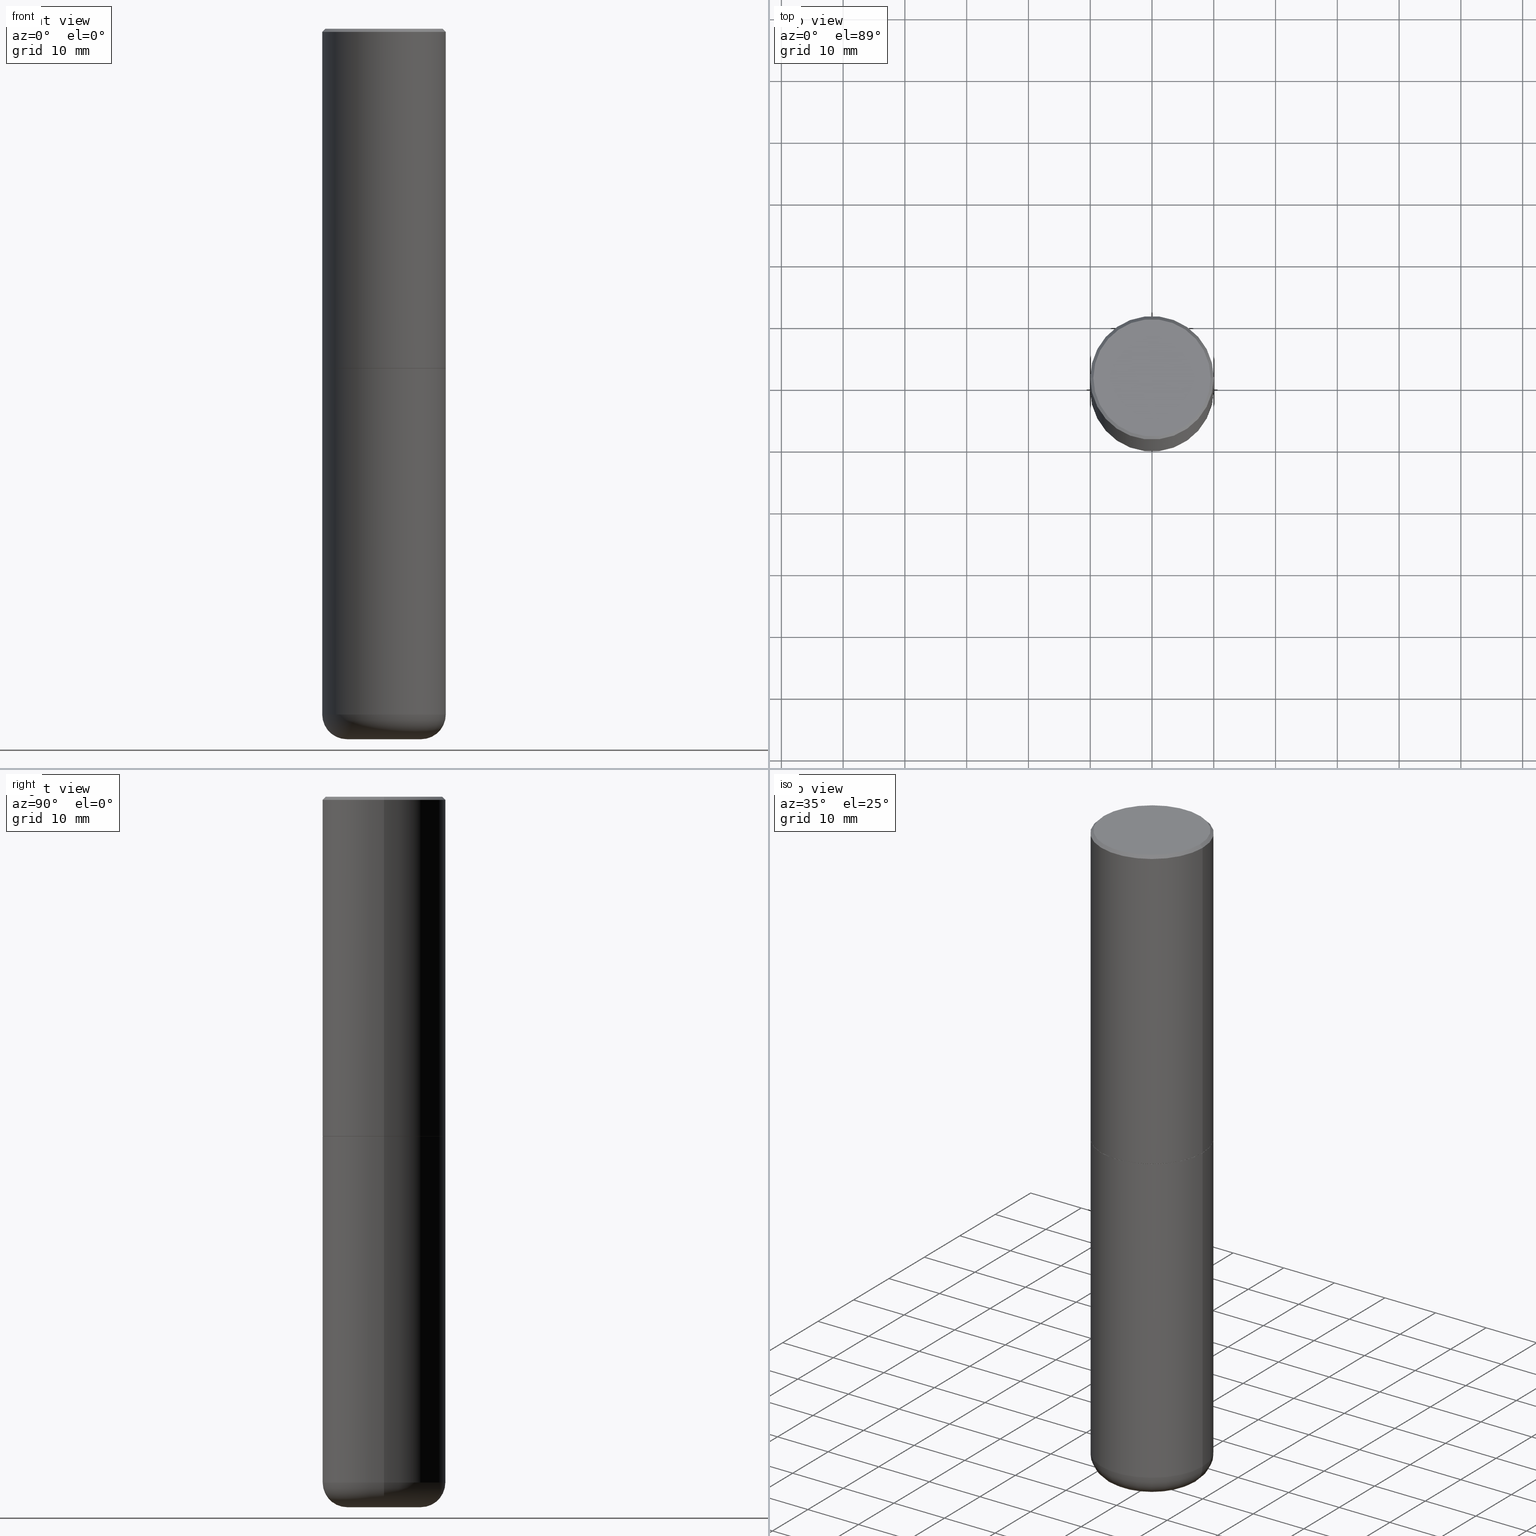
[diagram: canonical four-view strip — front | top / right | iso, engineering-drawing reading convention]
A machine part, canonical four-view strip (front | top / right | iso — engineering-drawing reading convention). The complete STEP part file that produces these views, byte-faithful:
ISO-10303-21;
HEADER;
FILE_DESCRIPTION (( 'STEP AP203' ),
    '1' );
FILE_NAME ('74662.STEP',
    '2024-03-06T15:55:29',
    ( '' ),
    ( '' ),
    'SwSTEP 2.0',
    'SolidWorks 2023',
    '' );
FILE_SCHEMA (( 'CONFIG_CONTROL_DESIGN' ));
ENDSEC;

DATA;
#1 = DIRECTION ( 'NONE',  ( -1.000000000000000000, 6.982962677686265922E-15, 0.000000000000000000 ) ) ;
#2 = VECTOR ( 'NONE', #80, 39.37007874015748854 ) ;
#3 = PRODUCT_RELATED_PRODUCT_CATEGORY ( 'detail', '', ( #197 ) ) ;
#4 = CARTESIAN_POINT ( 'NONE',  ( 5.295418152913294345E-29, -7.560453691130947423E-15, -2.165399999999999991 ) ) ;
#5 = DIRECTION ( 'NONE',  ( 1.000000000000000000, -6.982962677686265133E-15, 0.000000000000000000 ) ) ;
#6 = CIRCLE ( 'NONE', #51, 0.3737000000000000322 ) ;
#7 = EDGE_LOOP ( 'NONE', ( #29, #301, #292, #326 ) ) ;
#8 = AXIS2_PLACEMENT_3D ( 'NONE', #239, #235, #83 ) ;
#9 = ORIENTED_EDGE ( 'NONE', *, *, #165, .T. ) ;
#10 = DIRECTION ( 'NONE',  ( 1.000000000000000000, 0.000000000000000000, 0.000000000000000000 ) ) ;
#11 = ORIENTED_EDGE ( 'NONE', *, *, #106, .T. ) ;
#12 = EDGE_CURVE ( 'NONE', #370, #275, #291, .T. ) ;
#13 = EDGE_CURVE ( 'NONE', #336, #405, #40, .T. ) ;
#14 = EDGE_CURVE ( 'NONE', #258, #402, #199, .T. ) ;
#15 = ADVANCED_BREP_SHAPE_REPRESENTATION ( '74662', ( #68, #348, #325 ), #33 ) ;
#16 = SECURITY_CLASSIFICATION_LEVEL ( 'unclassified' ) ;
#17 = APPROVAL_PERSON_ORGANIZATION ( #177, #236, #82 ) ;
#18 = CARTESIAN_POINT ( 'NONE',  ( 0.000000000000000000, 0.000000000000000000, 0.000000000000000000 ) ) ;
#19 = ORIENTED_EDGE ( 'NONE', *, *, #148, .T. ) ;
#20 = APPROVAL_STATUS ( 'not_yet_approved' ) ;
#21 = ORIENTED_EDGE ( 'NONE', *, *, #144, .F. ) ;
#22 = DIRECTION ( 'NONE',  ( -2.445468806185136597E-29, 3.491481338843145583E-15, 1.000000000000000000 ) ) ;
#23 = VECTOR ( 'NONE', #320, 39.37007874015748143 ) ;
#24 = DIRECTION ( 'NONE',  ( -2.445468806185136597E-29, 3.491481338843145583E-15, 1.000000000000000000 ) ) ;
#25 = PLANE ( 'NONE',  #340 ) ;
#26 = LINE ( 'NONE', #150, #304 ) ;
#27 = CARTESIAN_POINT ( 'NONE',  ( 1.068694322990966450E-28, -1.525812259887842897E-14, -4.370099999999998985 ) ) ;
#28 = LINE ( 'NONE', #413, #381 ) ;
#29 = ORIENTED_EDGE ( 'NONE', *, *, #176, .F. ) ;
#30 = CARTESIAN_POINT ( 'NONE',  ( 5.295418152913293224E-29, -7.560453691130945845E-15, -2.165399999999999547 ) ) ;
#31 = DIRECTION ( 'NONE',  ( 2.445468806185136597E-29, -3.491481338843145583E-15, -1.000000000000000000 ) ) ;
#32 = EDGE_CURVE ( 'NONE', #238, #114, #211, .T. ) ;
#33 =( GEOMETRIC_REPRESENTATION_CONTEXT ( 3 ) GLOBAL_UNCERTAINTY_ASSIGNED_CONTEXT ( ( #99 ) ) GLOBAL_UNIT_ASSIGNED_CONTEXT ( ( #257, #394, #293 ) ) REPRESENTATION_CONTEXT ( 'NONE', 'WORKASPACE' ) );
#34 = CARTESIAN_POINT ( 'NONE',  ( 4.890937612370294178E-31, -6.982962677686321191E-17, -0.02000000000000008715 ) ) ;
#35 = DIRECTION ( 'NONE',  ( 1.000000000000000000, -6.982962677686265922E-15, 0.000000000000000000 ) ) ;
#36 = EDGE_CURVE ( 'NONE', #159, #100, #89, .T. ) ;
#37 = PLANE ( 'NONE',  #109 ) ;
#38 = ORIENTED_EDGE ( 'NONE', *, *, #274, .T. ) ;
#39 = AXIS2_PLACEMENT_3D ( 'NONE', #154, #232, #401 ) ;
#40 = CIRCLE ( 'NONE', #220, 0.3937000000000000499 ) ;
#41 = ADVANCED_FACE ( 'NONE', ( #196 ), #180, .T. ) ;
#42 = ORIENTED_EDGE ( 'NONE', *, *, #14, .T. ) ;
#43 = PERSON_AND_ORGANIZATION_ROLE ( 'design_supplier' ) ;
#44 = ORIENTED_EDGE ( 'NONE', *, *, #360, .F. ) ;
#45 = CALENDAR_DATE ( 2024, 6, 3 ) ;
#46 = CARTESIAN_POINT ( 'NONE',  ( -0.3937000000000001054, -1.246071584819091497E-14, -4.370099999999998985 ) ) ;
#47 = LOCAL_TIME ( 10, 55, 29.00000000000000000, #361 ) ;
#48 = ORIENTED_EDGE ( 'NONE', *, *, #373, .F. ) ;
#49 = EDGE_CURVE ( 'NONE', #350, #389, #403, .T. ) ;
#50 = CARTESIAN_POINT ( 'NONE',  ( 0.3926999999999999935, -1.030266313465834305E-14, -2.165399999999999991 ) ) ;
#51 = AXIS2_PLACEMENT_3D ( 'NONE', #254, #390, #168 ) ;
#52 = VECTOR ( 'NONE', #174, 39.37007874015748854 ) ;
#53 = FACE_OUTER_BOUND ( 'NONE', #393, .T. ) ;
#54 = FACE_OUTER_BOUND ( 'NONE', #385, .T. ) ;
#55 = CARTESIAN_POINT ( 'NONE',  ( 4.890937612370294178E-31, -6.982962677686321191E-17, -0.02000000000000008715 ) ) ;
#56 = ADVANCED_FACE ( 'NONE', ( #54 ), #140, .T. ) ;
#57 = CARTESIAN_POINT ( 'NONE',  ( 1.068694322990966450E-28, -1.525812259887842897E-14, -4.370099999999998985 ) ) ;
#58 = AXIS2_PLACEMENT_3D ( 'NONE', #183, #351, #283 ) ;
#59 = LINE ( 'NONE', #382, #396 ) ;
#60 = FACE_OUTER_BOUND ( 'NONE', #145, .T. ) ;
#61 = EDGE_CURVE ( 'NONE', #139, #336, #28, .T. ) ;
#62 = CARTESIAN_POINT ( 'NONE',  ( 1.107210456688382298E-28, -1.580803090974622389E-14, -4.527599999999999625 ) ) ;
#63 = CC_DESIGN_SECURITY_CLASSIFICATION ( #173, ( #234 ) ) ;
#64 = DIRECTION ( 'NONE',  ( 1.000000000000000000, -6.982962677686261977E-15, 4.883557194083110659E-29 ) ) ;
#65 = EDGE_LOOP ( 'NONE', ( #368, #261, #169, #138 ) ) ;
#66 = DIRECTION ( 'NONE',  ( 1.000000000000000000, -6.982962677686265922E-15, 4.876176775795935793E-29 ) ) ;
#67 = APPROVAL_DATE_TIME ( #352, #264 ) ;
#68 = MANIFOLD_SOLID_BREP ( 'Body-Move/Copy2[1]', #112 ) ;
#69 = EDGE_LOOP ( 'NONE', ( #44, #116, #221, #48 ) ) ;
#70 = APPROVAL_ROLE ( '' ) ;
#71 = AXIS2_PLACEMENT_3D ( 'NONE', #380, #347, #377 ) ;
#72 = CALENDAR_DATE ( 2024, 6, 3 ) ;
#73 = ORIENTED_EDGE ( 'NONE', *, *, #209, .F. ) ;
#74 = CC_DESIGN_PERSON_AND_ORGANIZATION_ASSIGNMENT ( #75, #330, ( #173 ) ) ;
#75 = PERSON_AND_ORGANIZATION ( #206, #355 ) ;
#76 = DATE_AND_TIME ( #72, #298 ) ;
#77 = AXIS2_PLACEMENT_3D ( 'NONE', #240, #24, #204 ) ;
#78 = DIRECTION ( 'NONE',  ( -2.445468806185136597E-29, 3.491481338843145583E-15, 1.000000000000000000 ) ) ;
#79 = ORIENTED_EDGE ( 'NONE', *, *, #358, .T. ) ;
#80 = DIRECTION ( 'NONE',  ( -0.7071067811865232589, 7.493145998870265808E-15, 0.7071067811865715536 ) ) ;
#81 = DIRECTION ( 'NONE',  ( 1.000000000000000000, -6.982962677686262766E-15, 0.000000000000000000 ) ) ;
#82 = APPROVAL_ROLE ( '' ) ;
#83 = DIRECTION ( 'NONE',  ( 1.000000000000000000, -6.982962677686265133E-15, 0.000000000000000000 ) ) ;
#84 = DATE_AND_TIME ( #200, #388 ) ;
#85 = DIRECTION ( 'NONE',  ( -2.445468806185136597E-29, 3.491481338843145583E-15, 1.000000000000000000 ) ) ;
#86 = FACE_OUTER_BOUND ( 'NONE', #391, .T. ) ;
#87 = AXIS2_PLACEMENT_3D ( 'NONE', #246, #213, #35 ) ;
#88 = ADVANCED_FACE ( 'NONE', ( #243 ), #149, .T. ) ;
#89 = CIRCLE ( 'NONE', #247, 0.3737000000000000322 ) ;
#90 = DIRECTION ( 'NONE',  ( -2.445468806185136597E-29, 3.491481338843145583E-15, 1.000000000000000000 ) ) ;
#91 = DIRECTION ( 'NONE',  ( 1.000000000000000000, -6.982962677686269077E-15, 0.000000000000000000 ) ) ;
#92 = DIRECTION ( 'NONE',  ( 1.000000000000000000, -6.982962677686262766E-15, 0.000000000000000000 ) ) ;
#93 = CIRCLE ( 'NONE', #71, 0.1575000000000000566 ) ;
#94 = ORIENTED_EDGE ( 'NONE', *, *, #296, .F. ) ;
#95 = FACE_OUTER_BOUND ( 'NONE', #208, .T. ) ;
#96 = AXIS2_PLACEMENT_3D ( 'NONE', #383, #218, #276 ) ;
#97 = ORIENTED_EDGE ( 'NONE', *, *, #12, .F. ) ;
#98 = APPLICATION_PROTOCOL_DEFINITION ( 'international standard', 'config_control_design', 1994, #290 ) ;
#99 = UNCERTAINTY_MEASURE_WITH_UNIT (LENGTH_MEASURE( 1.000000000000000082E-05 ), #257, 'distance_accuracy_value', 'NONE');
#100 = VERTEX_POINT ( 'NONE', #343 ) ;
#101 = DATE_TIME_ROLE ( 'creation_date' ) ;
#102 = VECTOR ( 'NONE', #222, 39.37007874015748143 ) ;
#103 = CC_DESIGN_PERSON_AND_ORGANIZATION_ASSIGNMENT ( #137, #164, ( #197 ) ) ;
#104 = AXIS2_PLACEMENT_3D ( 'NONE', #306, #408, #117 ) ;
#105 = DIRECTION ( 'NONE',  ( 0.000000000000000000, 0.000000000000000000, 1.000000000000000000 ) ) ;
#106 = EDGE_CURVE ( 'NONE', #159, #336, #376, .T. ) ;
#107 = EDGE_LOOP ( 'NONE', ( #111, #157, #79, #288 ) ) ;
#108 = ORIENTED_EDGE ( 'NONE', *, *, #274, .F. ) ;
#109 = AXIS2_PLACEMENT_3D ( 'NONE', #62, #210, #127 ) ;
#110 = DIRECTION ( 'NONE',  ( 0.7071067811865469066, -7.319954787623252890E-15, -0.7071067811865479058 ) ) ;
#111 = ORIENTED_EDGE ( 'NONE', *, *, #106, .F. ) ;
#112 = CLOSED_SHELL ( 'NONE', ( #156, #278, #329, #319, #56, #309 ) ) ;
#113 = DATE_TIME_ROLE ( 'classification_date' ) ;
#114 = VERTEX_POINT ( 'NONE', #242 ) ;
#115 = DIRECTION ( 'NONE',  ( -2.445468806185136597E-29, 3.491481338843145583E-15, 1.000000000000000000 ) ) ;
#116 = ORIENTED_EDGE ( 'NONE', *, *, #216, .T. ) ;
#117 = DIRECTION ( 'NONE',  ( 1.000000000000000000, -6.982962677686269077E-15, 0.000000000000000000 ) ) ;
#118 = CARTESIAN_POINT ( 'NONE',  ( 0.000000000000000000, 0.000000000000000000, 0.000000000000000000 ) ) ;
#119 = DIRECTION ( 'NONE',  ( -2.445468806185136877E-29, 3.491481338843145188E-15, 1.000000000000000000 ) ) ;
#120 = ORIENTED_EDGE ( 'NONE', *, *, #360, .T. ) ;
#121 = FACE_OUTER_BOUND ( 'NONE', #233, .T. ) ;
#122 = CARTESIAN_POINT ( 'NONE',  ( -0.2362000000000000766, -1.329522240803589203E-14, -4.527599999999999625 ) ) ;
#123 = DIRECTION ( 'NONE',  ( 1.000000000000000000, -6.982962677686262766E-15, 0.000000000000000000 ) ) ;
#124 = CIRCLE ( 'NONE', #356, 0.3937000000000000499 ) ;
#125 = CARTESIAN_POINT ( 'NONE',  ( 0.000000000000000000, 0.000000000000000000, 0.000000000000000000 ) ) ;
#126 = CARTESIAN_POINT ( 'NONE',  ( -0.3937000000000000499, -8.611881394317173410E-15, -2.165399999999999547 ) ) ;
#127 = DIRECTION ( 'NONE',  ( -1.000000000000000000, 6.982962677686265922E-15, -4.876176775795935793E-29 ) ) ;
#128 = ORIENTED_EDGE ( 'NONE', *, *, #36, .F. ) ;
#129 = DIMENSIONAL_EXPONENTS ( 1.000000000000000000, 0.000000000000000000, 0.000000000000000000, 0.000000000000000000, 0.000000000000000000, 0.000000000000000000, 0.000000000000000000 ) ;
#130 = ORIENTED_EDGE ( 'NONE', *, *, #176, .T. ) ;
#131 = PERSON_AND_ORGANIZATION ( #206, #355 ) ;
#132 = DIRECTION ( 'NONE',  ( 1.000000000000000000, -6.982962677686266711E-15, 4.875705233642009010E-29 ) ) ;
#133 = LENGTH_MEASURE_WITH_UNIT ( LENGTH_MEASURE( 0.02539999999999999897 ), #332 );
#134 = LOCAL_TIME ( 10, 55, 29.00000000000000000, #231 ) ;
#135 = DIRECTION ( 'NONE',  ( -1.000000000000000000, 6.982962677686265922E-15, 0.000000000000000000 ) ) ;
#136 = ORIENTED_EDGE ( 'NONE', *, *, #13, .T. ) ;
#137 = PERSON_AND_ORGANIZATION ( #206, #355 ) ;
#138 = ORIENTED_EDGE ( 'NONE', *, *, #148, .F. ) ;
#139 = VERTEX_POINT ( 'NONE', #151 ) ;
#140 = TOROIDAL_SURFACE ( 'NONE', #172, 0.2362000000000000210, 0.1575000000000000844 ) ;
#141 = ORIENTED_EDGE ( 'NONE', *, *, #61, .F. ) ;
#142 = CIRCLE ( 'NONE', #185, 0.3937000000000002720 ) ;
#143 = CARTESIAN_POINT ( 'NONE',  ( 0.2362000000000000210, -1.690749838334792550E-14, -4.370099999999998985 ) ) ;
#144 = EDGE_CURVE ( 'NONE', #402, #258, #124, .T. ) ;
#145 = EDGE_LOOP ( 'NONE', ( #128, #11, #136, #311 ) ) ;
#146 = AXIS2_PLACEMENT_3D ( 'NONE', #118, #78, #201 ) ;
#147 = DIRECTION ( 'NONE',  ( -6.982962677686266711E-15, -1.000000000000000000, 3.491481338843145583E-15 ) ) ;
#148 = EDGE_CURVE ( 'NONE', #389, #258, #272, .T. ) ;
#149 = CYLINDRICAL_SURFACE ( 'NONE', #77, 0.3937000000000001609 ) ;
#150 = CARTESIAN_POINT ( 'NONE',  ( 0.3937000000000000499, -2.749192406205083217E-15, 1.919750796630860172E-29 ) ) ;
#151 = CARTESIAN_POINT ( 'NONE',  ( 0.3937000000000002720, -1.030615461599718763E-14, -2.164399999999999658 ) ) ;
#152 = LINE ( 'NONE', #188, #102 ) ;
#153 = CARTESIAN_POINT ( 'NONE',  ( -0.3937000000000000499, 2.797406750687514786E-15, -1.936584745033356735E-29 ) ) ;
#154 = CARTESIAN_POINT ( 'NONE',  ( 5.295418152913294345E-29, -7.560453691130947423E-15, -2.165399999999999991 ) ) ;
#155 = FACE_OUTER_BOUND ( 'NONE', #7, .T. ) ;
#156 = ADVANCED_FACE ( 'NONE', ( #337 ), #266, .T. ) ;
#157 = ORIENTED_EDGE ( 'NONE', *, *, #410, .F. ) ;
#158 = CARTESIAN_POINT ( 'NONE',  ( 1.068694322990966450E-28, -1.525812259887842897E-14, -4.370099999999998985 ) ) ;
#159 = VERTEX_POINT ( 'NONE', #268 ) ;
#160 = FACE_OUTER_BOUND ( 'NONE', #65, .T. ) ;
#161 = AXIS2_PLACEMENT_3D ( 'NONE', #214, #182, #92 ) ;
#162 = APPROVAL_DATE_TIME ( #166, #190 ) ;
#163 = ORIENTED_EDGE ( 'NONE', *, *, #249, .F. ) ;
#164 = PERSON_AND_ORGANIZATION_ROLE ( 'design_owner' ) ;
#165 = EDGE_CURVE ( 'NONE', #275, #370, #365, .T. ) ;
#166 = DATE_AND_TIME ( #45, #47 ) ;
#167 = AXIS2_PLACEMENT_3D ( 'NONE', #158, #252, #64 ) ;
#168 = DIRECTION ( 'NONE',  ( 1.000000000000000000, -6.982962677686266711E-15, 4.875705233642009010E-29 ) ) ;
#169 = ORIENTED_EDGE ( 'NONE', *, *, #14, .F. ) ;
#170 = EDGE_LOOP ( 'NONE', ( #42, #38, #97, #409 ) ) ;
#171 = DIRECTION ( 'NONE',  ( 1.000000000000000000, -6.982962677686261977E-15, 4.883557194083110659E-29 ) ) ;
#172 = AXIS2_PLACEMENT_3D ( 'NONE', #307, #85, #171 ) ;
#173 = SECURITY_CLASSIFICATION ( '', '', #16 ) ;
#174 = DIRECTION ( 'NONE',  ( 0.7071067811865232589, -2.468850131082003836E-15, 0.7071067811865715536 ) ) ;
#175 = DIRECTION ( 'NONE',  ( 2.438088387897960049E-29, -3.491481338843145188E-15, -1.000000000000000000 ) ) ;
#176 = EDGE_CURVE ( 'NONE', #114, #193, #369, .T. ) ;
#177 = PERSON_AND_ORGANIZATION ( #206, #355 ) ;
#178 = DIRECTION ( 'NONE',  ( 1.000000000000000000, -6.982962677686265922E-15, 4.876176775795935793E-29 ) ) ;
#179 = CARTESIAN_POINT ( 'NONE',  ( -0.3926999999999999935, -4.770152367801032856E-15, -2.165399999999999991 ) ) ;
#180 = CYLINDRICAL_SURFACE ( 'NONE', #146, 0.3937000000000001609 ) ;
#181 = AXIS2_PLACEMENT_3D ( 'NONE', #406, #115, #341 ) ;
#182 = DIRECTION ( 'NONE',  ( -2.445468806185136597E-29, 3.491481338843145583E-15, 1.000000000000000000 ) ) ;
#183 = CARTESIAN_POINT ( 'NONE',  ( 5.295418152913294345E-29, -7.560453691130947423E-15, -2.165399999999999991 ) ) ;
#184 = CARTESIAN_POINT ( 'NONE',  ( 0.3937000000000000499, -1.030964609733602906E-14, -2.165399999999999547 ) ) ;
#185 = AXIS2_PLACEMENT_3D ( 'NONE', #416, #277, #91 ) ;
#186 = CARTESIAN_POINT ( 'NONE',  ( 4.890937612370294178E-31, -6.982962677686321191E-17, -0.02000000000000008715 ) ) ;
#187 = ADVANCED_FACE ( 'NONE', ( #375 ), #312, .F. ) ;
#188 = CARTESIAN_POINT ( 'NONE',  ( -0.3937000000000001609, 2.797406750687515575E-15, -1.936584745033357296E-29 ) ) ;
#189 = PERSON_AND_ORGANIZATION_ROLE ( 'creator' ) ;
#190 = APPROVAL ( #194, 'UNSPECIFIED' ) ;
#191 = AXIS2_PLACEMENT_3D ( 'NONE', #27, #90, #123 ) ;
#192 = CC_DESIGN_APPROVAL ( #190, ( #234 ) ) ;
#193 = VERTEX_POINT ( 'NONE', #203 ) ;
#194 = APPROVAL_STATUS ( 'not_yet_approved' ) ;
#195 = PERSON_AND_ORGANIZATION ( #206, #355 ) ;
#196 = FACE_OUTER_BOUND ( 'NONE', #227, .T. ) ;
#197 = PRODUCT ( '74662', '74662', '', ( #286 ) ) ;
#198 = AXIS2_PLACEMENT_3D ( 'NONE', #414, #321, #5 ) ;
#199 = CIRCLE ( 'NONE', #191, 0.3937000000000000499 ) ;
#200 = CALENDAR_DATE ( 2024, 6, 3 ) ;
#201 = DIRECTION ( 'NONE',  ( 1.000000000000000000, -6.982962677686266711E-15, 4.876176775795935793E-29 ) ) ;
#202 = CC_DESIGN_PERSON_AND_ORGANIZATION_ASSIGNMENT ( #295, #189, ( #371 ) ) ;
#203 = CARTESIAN_POINT ( 'NONE',  ( -0.3937000000000003830, -1.015989167596963746E-15, -2.164399999999999658 ) ) ;
#204 = DIRECTION ( 'NONE',  ( 1.000000000000000000, -6.982962677686266711E-15, 4.876176775795935793E-29 ) ) ;
#205 = CARTESIAN_POINT ( 'NONE',  ( 5.295418152913294345E-29, -7.560453691130947423E-15, -2.165399999999999991 ) ) ;
#206 = PERSON ( 'UNSPECIFIED', 'UNSPECIFIED', 'UNSPECIFIED', ('UNSPECIFIED'), ('UNSPECIFIED'), ('UNSPECIFIED') ) ;
#207 = CARTESIAN_POINT ( 'NONE',  ( 1.107210456688382298E-28, -1.580803090974622389E-14, -4.527599999999999625 ) ) ;
#208 = EDGE_LOOP ( 'NONE', ( #284, #9 ) ) ;
#209 = EDGE_CURVE ( 'NONE', #238, #139, #366, .T. ) ;
#210 = DIRECTION ( 'NONE',  ( 2.438088387897960049E-29, -3.491481338843145188E-15, -1.000000000000000000 ) ) ;
#211 = CIRCLE ( 'NONE', #39, 0.3926999999999999935 ) ;
#212 = AXIS2_PLACEMENT_3D ( 'NONE', #186, #224, #135 ) ;
#213 = DIRECTION ( 'NONE',  ( -2.445468806185136597E-29, 3.491481338843145583E-15, 1.000000000000000000 ) ) ;
#214 = CARTESIAN_POINT ( 'NONE',  ( 1.107210456688382298E-28, -1.580803090974622389E-14, -4.527599999999999625 ) ) ;
#215 = CC_DESIGN_PERSON_AND_ORGANIZATION_ASSIGNMENT ( #131, #297, ( #234 ) ) ;
#216 = EDGE_CURVE ( 'NONE', #193, #139, #281, .T. ) ;
#217 = DIRECTION ( 'NONE',  ( 1.000000000000000000, -6.982962677686265133E-15, 0.000000000000000000 ) ) ;
#218 = DIRECTION ( 'NONE',  ( -2.445468806185136597E-29, 3.491481338843145583E-15, 1.000000000000000000 ) ) ;
#219 = CIRCLE ( 'NONE', #161, 0.2362000000000000766 ) ;
#220 = AXIS2_PLACEMENT_3D ( 'NONE', #55, #267, #269 ) ;
#221 = ORIENTED_EDGE ( 'NONE', *, *, #61, .T. ) ;
#222 = DIRECTION ( 'NONE',  ( -2.445468806185136877E-29, 3.491481338843145188E-15, 1.000000000000000000 ) ) ;
#223 = EDGE_LOOP ( 'NONE', ( #251, #363 ) ) ;
#224 = DIRECTION ( 'NONE',  ( 2.445468806185136597E-29, -3.491481338843145583E-15, -1.000000000000000000 ) ) ;
#225 = CONICAL_SURFACE ( 'NONE', #418, 0.3926999999999999935, 0.7853981633974141952 ) ;
#226 = TOROIDAL_SURFACE ( 'NONE', #167, 0.2362000000000000210, 0.1575000000000000844 ) ;
#227 = EDGE_LOOP ( 'NONE', ( #299, #120, #367, #141 ) ) ;
#228 = ADVANCED_FACE ( 'NONE', ( #53 ), #25, .F. ) ;
#229 = AXIS2_PLACEMENT_3D ( 'NONE', #271, #175, #411 ) ;
#230 = COORDINATED_UNIVERSAL_TIME_OFFSET ( 5, 0, .BEHIND. ) ;
#231 = COORDINATED_UNIVERSAL_TIME_OFFSET ( 5, 0, .BEHIND. ) ;
#232 = DIRECTION ( 'NONE',  ( -2.445468806185136597E-29, 3.491481338843145583E-15, 1.000000000000000000 ) ) ;
#233 = EDGE_LOOP ( 'NONE', ( #108, #324, #334, #322 ) ) ;
#234 = PRODUCT_DEFINITION_FORMATION_WITH_SPECIFIED_SOURCE ( 'ANY', '', #197, .NOT_KNOWN. ) ;
#235 = DIRECTION ( 'NONE',  ( -2.445468806185136597E-29, 3.491481338843145583E-15, 1.000000000000000000 ) ) ;
#236 = APPROVAL ( #20, 'UNSPECIFIED' ) ;
#237 = SHAPE_DEFINITION_REPRESENTATION ( #354, #15 ) ;
#238 = VERTEX_POINT ( 'NONE', #310 ) ;
#239 = CARTESIAN_POINT ( 'NONE',  ( 5.295418152913293224E-29, -7.560453691130945845E-15, -2.165399999999999547 ) ) ;
#240 = CARTESIAN_POINT ( 'NONE',  ( 0.000000000000000000, 0.000000000000000000, 0.000000000000000000 ) ) ;
#241 = CC_DESIGN_APPROVAL ( #236, ( #173 ) ) ;
#242 = CARTESIAN_POINT ( 'NONE',  ( -0.3926999999999999935, -4.764853913452810454E-15, -2.165399999999999991 ) ) ;
#243 = FACE_OUTER_BOUND ( 'NONE', #69, .T. ) ;
#244 = PLANE ( 'NONE',  #280 ) ;
#245 = EDGE_CURVE ( 'NONE', #258, #370, #26, .T. ) ;
#246 = CARTESIAN_POINT ( 'NONE',  ( 4.890937612370294178E-31, -6.982962677686321191E-17, -0.02000000000000008715 ) ) ;
#247 = AXIS2_PLACEMENT_3D ( 'NONE', #362, #287, #132 ) ;
#248 = CARTESIAN_POINT ( 'NONE',  ( 0.3937000000000000499, -2.770807688499515734E-15, -0.02000000000000008715 ) ) ;
#249 = EDGE_CURVE ( 'NONE', #350, #402, #93, .T. ) ;
#250 = DIRECTION ( 'NONE',  ( 2.438088387897960049E-29, -3.491481338843145188E-15, -1.000000000000000000 ) ) ;
#251 = ORIENTED_EDGE ( 'NONE', *, *, #410, .T. ) ;
#252 = DIRECTION ( 'NONE',  ( -2.445468806185136597E-29, 3.491481338843145583E-15, 1.000000000000000000 ) ) ;
#253 = ORIENTED_EDGE ( 'NONE', *, *, #32, .T. ) ;
#254 = CARTESIAN_POINT ( 'NONE',  ( 1.565777121502829671E-45, -2.235514755570671047E-31, -6.402768735150616610E-17 ) ) ;
#255 = ORIENTED_EDGE ( 'NONE', *, *, #282, .F. ) ;
#256 = ORIENTED_EDGE ( 'NONE', *, *, #300, .F. ) ;
#257 =( CONVERSION_BASED_UNIT ( 'INCH', #133 ) LENGTH_UNIT ( ) NAMED_UNIT ( #129 ) );
#258 = VERTEX_POINT ( 'NONE', #387 ) ;
#259 = ADVANCED_FACE ( 'NONE', ( #279 ), #331, .T. ) ;
#260 = CARTESIAN_POINT ( 'NONE',  ( -0.3937000000000000499, 2.679362779428219918E-15, -0.02000000000000008715 ) ) ;
#261 = ORIENTED_EDGE ( 'NONE', *, *, #249, .T. ) ;
#262 = COORDINATED_UNIVERSAL_TIME_OFFSET ( 5, 0, .BEHIND. ) ;
#263 = APPLICATION_CONTEXT ( 'configuration controlled 3d designs of mechanical parts and assemblies' ) ;
#264 = APPROVAL ( #357, 'UNSPECIFIED' ) ;
#265 = LOCAL_TIME ( 10, 55, 29.00000000000000000, #262 ) ;
#266 = CYLINDRICAL_SURFACE ( 'NONE', #181, 0.3937000000000000499 ) ;
#267 = DIRECTION ( 'NONE',  ( -2.445468806185136597E-29, 3.491481338843145583E-15, 1.000000000000000000 ) ) ;
#268 = CARTESIAN_POINT ( 'NONE',  ( 0.3737000000000000322, -2.667287895133368753E-15, -6.402768735148772648E-17 ) ) ;
#269 = DIRECTION ( 'NONE',  ( 1.000000000000000000, -6.982962677686265922E-15, 0.000000000000000000 ) ) ;
#270 = DIRECTION ( 'NONE',  ( 1.000000000000000000, -6.982962677686259611E-15, 0.000000000000000000 ) ) ;
#271 = CARTESIAN_POINT ( 'NONE',  ( 2.609533152651357803E-15, 0.3737000000000000322, -1.336780420001436835E-15 ) ) ;
#272 = CIRCLE ( 'NONE', #313, 0.1575000000000000566 ) ;
#273 = CARTESIAN_POINT ( 'NONE',  ( 0.3937000000000000499, -2.770807688499515734E-15, -0.02000000000000008715 ) ) ;
#274 = EDGE_CURVE ( 'NONE', #402, #275, #285, .T. ) ;
#275 = VERTEX_POINT ( 'NONE', #126 ) ;
#276 = DIRECTION ( 'NONE',  ( 1.000000000000000000, -6.982962677686265133E-15, 0.000000000000000000 ) ) ;
#277 = DIRECTION ( 'NONE',  ( -2.445468806185136597E-29, 3.491481338843145583E-15, 1.000000000000000000 ) ) ;
#278 = ADVANCED_FACE ( 'NONE', ( #160 ), #226, .T. ) ;
#279 = FACE_OUTER_BOUND ( 'NONE', #415, .T. ) ;
#280 = AXIS2_PLACEMENT_3D ( 'NONE', #30, #250, #345 ) ;
#281 = CIRCLE ( 'NONE', #104, 0.3937000000000002720 ) ;
#282 = EDGE_CURVE ( 'NONE', #114, #238, #289, .T. ) ;
#283 = DIRECTION ( 'NONE',  ( 1.000000000000000000, -6.982962677686265133E-15, 0.000000000000000000 ) ) ;
#284 = ORIENTED_EDGE ( 'NONE', *, *, #12, .T. ) ;
#285 = LINE ( 'NONE', #153, #23 ) ;
#286 = MECHANICAL_CONTEXT ( 'NONE', #263, 'mechanical' ) ;
#287 = DIRECTION ( 'NONE',  ( -2.445468806185136597E-29, 3.491481338843145583E-15, 1.000000000000000000 ) ) ;
#288 = ORIENTED_EDGE ( 'NONE', *, *, #373, .T. ) ;
#289 = CIRCLE ( 'NONE', #198, 0.3926999999999999935 ) ;
#290 = APPLICATION_CONTEXT ( 'configuration controlled 3d designs of mechanical parts and assemblies' ) ;
#291 = CIRCLE ( 'NONE', #96, 0.3937000000000000499 ) ;
#292 = ORIENTED_EDGE ( 'NONE', *, *, #209, .T. ) ;
#293 =( NAMED_UNIT ( * ) SI_UNIT ( $, .STERADIAN. ) SOLID_ANGLE_UNIT ( ) );
#294 = ORIENTED_EDGE ( 'NONE', *, *, #49, .T. ) ;
#295 = PERSON_AND_ORGANIZATION ( #206, #355 ) ;
#296 = EDGE_CURVE ( 'NONE', #139, #193, #142, .T. ) ;
#297 = PERSON_AND_ORGANIZATION_ROLE ( 'creator' ) ;
#298 = LOCAL_TIME ( 10, 55, 29.00000000000000000, #230 ) ;
#299 = ORIENTED_EDGE ( 'NONE', *, *, #296, .T. ) ;
#300 = EDGE_CURVE ( 'NONE', #389, #350, #219, .T. ) ;
#301 = ORIENTED_EDGE ( 'NONE', *, *, #282, .T. ) ;
#302 = DIRECTION ( 'NONE',  ( -2.445468806185136877E-29, 3.491481338843145188E-15, 1.000000000000000000 ) ) ;
#303 = VECTOR ( 'NONE', #110, 39.37007874015748854 ) ;
#304 = VECTOR ( 'NONE', #119, 39.37007874015748143 ) ;
#305 = AXIS2_PLACEMENT_3D ( 'NONE', #207, #335, #372 ) ;
#306 = CARTESIAN_POINT ( 'NONE',  ( 5.292972684107107621E-29, -7.556962209792102838E-15, -2.164399999999999658 ) ) ;
#307 = CARTESIAN_POINT ( 'NONE',  ( 1.068694322990966450E-28, -1.525812259887842897E-14, -4.370099999999998985 ) ) ;
#308 = CALENDAR_DATE ( 2024, 6, 3 ) ;
#309 = ADVANCED_FACE ( 'NONE', ( #86 ), #37, .T. ) ;
#310 = CARTESIAN_POINT ( 'NONE',  ( 0.3926999999999999935, -1.030266313465834305E-14, -2.165399999999999991 ) ) ;
#311 = ORIENTED_EDGE ( 'NONE', *, *, #358, .F. ) ;
#312 = PLANE ( 'NONE',  #229 ) ;
#313 = AXIS2_PLACEMENT_3D ( 'NONE', #143, #147, #270 ) ;
#314 = DIRECTION ( 'NONE',  ( -0.7071067811865469066, 2.468850131082251144E-15, -0.7071067811865479058 ) ) ;
#315 = CC_DESIGN_DATE_AND_TIME_ASSIGNMENT ( #76, #101, ( #371 ) ) ;
#316 = DIRECTION ( 'NONE',  ( -2.445468806185136597E-29, 3.491481338843145583E-15, 1.000000000000000000 ) ) ;
#317 = CARTESIAN_POINT ( 'NONE',  ( 0.2362000000000000766, -1.745740669421572042E-14, -4.527599999999999625 ) ) ;
#318 = APPROVAL_PERSON_ORGANIZATION ( #195, #190, #323 ) ;
#319 = ADVANCED_FACE ( 'NONE', ( #121 ), #346, .T. ) ;
#320 = DIRECTION ( 'NONE',  ( -2.445468806185136877E-29, 3.491481338843145188E-15, 1.000000000000000000 ) ) ;
#321 = DIRECTION ( 'NONE',  ( -2.445468806185136597E-29, 3.491481338843145583E-15, 1.000000000000000000 ) ) ;
#322 = ORIENTED_EDGE ( 'NONE', *, *, #165, .F. ) ;
#323 = APPROVAL_ROLE ( '' ) ;
#324 = ORIENTED_EDGE ( 'NONE', *, *, #144, .T. ) ;
#325 = AXIS2_PLACEMENT_3D ( 'NONE', #18, #105, #10 ) ;
#326 = ORIENTED_EDGE ( 'NONE', *, *, #216, .F. ) ;
#327 = PERSON_AND_ORGANIZATION ( #206, #355 ) ;
#328 = CC_DESIGN_DATE_AND_TIME_ASSIGNMENT ( #404, #113, ( #173 ) ) ;
#329 = ADVANCED_FACE ( 'NONE', ( #95 ), #244, .F. ) ;
#330 = PERSON_AND_ORGANIZATION_ROLE ( 'classification_officer' ) ;
#331 = CONICAL_SURFACE ( 'NONE', #58, 0.3926999999999999935, 0.7853981633974141952 ) ;
#332 =( LENGTH_UNIT ( ) NAMED_UNIT ( * ) SI_UNIT ( $, .METRE. ) );
#333 = COORDINATED_UNIVERSAL_TIME_OFFSET ( 5, 0, .BEHIND. ) ;
#334 = ORIENTED_EDGE ( 'NONE', *, *, #245, .T. ) ;
#335 = DIRECTION ( 'NONE',  ( -2.445468806185136597E-29, 3.491481338843145583E-15, 1.000000000000000000 ) ) ;
#336 = VERTEX_POINT ( 'NONE', #248 ) ;
#337 = FACE_OUTER_BOUND ( 'NONE', #170, .T. ) ;
#338 = CONICAL_SURFACE ( 'NONE', #212, 0.3937000000000000499, 0.7853981633974476129 ) ;
#339 = APPROVAL_DATE_TIME ( #84, #236 ) ;
#340 = AXIS2_PLACEMENT_3D ( 'NONE', #205, #342, #178 ) ;
#341 = DIRECTION ( 'NONE',  ( 1.000000000000000000, -6.982962677686265922E-15, 4.876176775795935793E-29 ) ) ;
#342 = DIRECTION ( 'NONE',  ( -2.438088387897960049E-29, 3.491481338843145188E-15, 1.000000000000000000 ) ) ;
#343 = CARTESIAN_POINT ( 'NONE',  ( -0.3737000000000000322, 2.644447966039789058E-15, -6.402768735152454409E-17 ) ) ;
#344 = CIRCLE ( 'NONE', #87, 0.3937000000000000499 ) ;
#345 = DIRECTION ( 'NONE',  ( -1.000000000000000000, 6.982962677686265922E-15, -4.876176775795935793E-29 ) ) ;
#346 = CYLINDRICAL_SURFACE ( 'NONE', #364, 0.3937000000000000499 ) ;
#347 = DIRECTION ( 'NONE',  ( 7.105427357601001859E-15, 1.000000000000000000, -3.491481338843145583E-15 ) ) ;
#348 = MANIFOLD_SOLID_BREP ( 'Body-Move/Copy2[2]', #378 ) ;
#349 = FACE_OUTER_BOUND ( 'NONE', #107, .T. ) ;
#350 = VERTEX_POINT ( 'NONE', #122 ) ;
#351 = DIRECTION ( 'NONE',  ( -2.445468806185136597E-29, 3.491481338843145583E-15, 1.000000000000000000 ) ) ;
#352 = DATE_AND_TIME ( #359, #134 ) ;
#353 = DESIGN_CONTEXT ( 'detailed design', #290, 'design' ) ;
#354 = PRODUCT_DEFINITION_SHAPE ( 'NONE', 'NONE',  #371 ) ;
#355 = ORGANIZATION ( 'UNSPECIFIED', 'UNSPECIFIED', '' ) ;
#356 = AXIS2_PLACEMENT_3D ( 'NONE', #57, #22, #81 ) ;
#357 = APPROVAL_STATUS ( 'not_yet_approved' ) ;
#358 = EDGE_CURVE ( 'NONE', #100, #405, #59, .T. ) ;
#359 = CALENDAR_DATE ( 2024, 6, 3 ) ;
#360 = EDGE_CURVE ( 'NONE', #193, #405, #152, .T. ) ;
#361 = COORDINATED_UNIVERSAL_TIME_OFFSET ( 5, 0, .BEHIND. ) ;
#362 = CARTESIAN_POINT ( 'NONE',  ( 1.565777121502829671E-45, -2.235514755570671047E-31, -6.402768735150616610E-17 ) ) ;
#363 = ORIENTED_EDGE ( 'NONE', *, *, #36, .T. ) ;
#364 = AXIS2_PLACEMENT_3D ( 'NONE', #125, #316, #66 ) ;
#365 = CIRCLE ( 'NONE', #8, 0.3937000000000000499 ) ;
#366 = LINE ( 'NONE', #50, #52 ) ;
#367 = ORIENTED_EDGE ( 'NONE', *, *, #13, .F. ) ;
#368 = ORIENTED_EDGE ( 'NONE', *, *, #300, .T. ) ;
#369 = LINE ( 'NONE', #179, #2 ) ;
#370 = VERTEX_POINT ( 'NONE', #184 ) ;
#371 = PRODUCT_DEFINITION ( 'UNKNOWN', '', #234, #353 ) ;
#372 = DIRECTION ( 'NONE',  ( 1.000000000000000000, -6.982962677686262766E-15, 0.000000000000000000 ) ) ;
#373 = EDGE_CURVE ( 'NONE', #405, #336, #344, .T. ) ;
#374 = CC_DESIGN_APPROVAL ( #264, ( #371 ) ) ;
#375 = FACE_OUTER_BOUND ( 'NONE', #223, .T. ) ;
#376 = LINE ( 'NONE', #273, #303 ) ;
#377 = DIRECTION ( 'NONE',  ( -1.000000000000000000, 7.105427357601006592E-15, 0.000000000000000000 ) ) ;
#378 = CLOSED_SHELL ( 'NONE', ( #259, #41, #392, #398, #88, #395, #228, #187 ) ) ;
#379 = APPROVAL_PERSON_ORGANIZATION ( #400, #264, #70 ) ;
#380 = CARTESIAN_POINT ( 'NONE',  ( -0.2362000000000000210, -1.357982065701307100E-14, -4.370099999999998985 ) ) ;
#381 = VECTOR ( 'NONE', #302, 39.37007874015748143 ) ;
#382 = CARTESIAN_POINT ( 'NONE',  ( -0.3937000000000000499, 2.679362779428219918E-15, -0.02000000000000008715 ) ) ;
#383 = CARTESIAN_POINT ( 'NONE',  ( 5.295418152913293224E-29, -7.560453691130945845E-15, -2.165399999999999547 ) ) ;
#384 = DIRECTION ( 'NONE',  ( -2.445468806185136597E-29, 3.491481338843145583E-15, 1.000000000000000000 ) ) ;
#385 = EDGE_LOOP ( 'NONE', ( #163, #294, #19, #21 ) ) ;
#386 = ORIENTED_EDGE ( 'NONE', *, *, #32, .F. ) ;
#387 = CARTESIAN_POINT ( 'NONE',  ( 0.3937000000000001054, -1.800731500508351219E-14, -4.370099999999998985 ) ) ;
#388 = LOCAL_TIME ( 10, 55, 29.00000000000000000, #333 ) ;
#389 = VERTEX_POINT ( 'NONE', #317 ) ;
#390 = DIRECTION ( 'NONE',  ( -2.445468806185136597E-29, 3.491481338843145583E-15, 1.000000000000000000 ) ) ;
#391 = EDGE_LOOP ( 'NONE', ( #256, #397 ) ) ;
#392 = ADVANCED_FACE ( 'NONE', ( #60 ), #412, .T. ) ;
#393 = EDGE_LOOP ( 'NONE', ( #386, #255 ) ) ;
#394 =( NAMED_UNIT ( * ) PLANE_ANGLE_UNIT ( ) SI_UNIT ( $, .RADIAN. ) );
#395 = ADVANCED_FACE ( 'NONE', ( #155 ), #225, .T. ) ;
#396 = VECTOR ( 'NONE', #314, 39.37007874015748854 ) ;
#397 = ORIENTED_EDGE ( 'NONE', *, *, #49, .F. ) ;
#398 = ADVANCED_FACE ( 'NONE', ( #349 ), #338, .T. ) ;
#399 = APPLICATION_PROTOCOL_DEFINITION ( 'international standard', 'config_control_design', 1994, #263 ) ;
#400 = PERSON_AND_ORGANIZATION ( #206, #355 ) ;
#401 = DIRECTION ( 'NONE',  ( 1.000000000000000000, -6.982962677686265133E-15, 0.000000000000000000 ) ) ;
#402 = VERTEX_POINT ( 'NONE', #46 ) ;
#403 = CIRCLE ( 'NONE', #305, 0.2362000000000000766 ) ;
#404 = DATE_AND_TIME ( #308, #265 ) ;
#405 = VERTEX_POINT ( 'NONE', #260 ) ;
#406 = CARTESIAN_POINT ( 'NONE',  ( 0.000000000000000000, 0.000000000000000000, 0.000000000000000000 ) ) ;
#407 = CC_DESIGN_PERSON_AND_ORGANIZATION_ASSIGNMENT ( #327, #43, ( #234 ) ) ;
#408 = DIRECTION ( 'NONE',  ( -2.445468806185136597E-29, 3.491481338843145583E-15, 1.000000000000000000 ) ) ;
#409 = ORIENTED_EDGE ( 'NONE', *, *, #245, .F. ) ;
#410 = EDGE_CURVE ( 'NONE', #100, #159, #6, .T. ) ;
#411 = DIRECTION ( 'NONE',  ( -1.000000000000000000, 6.982962677686265922E-15, -4.876176775795935793E-29 ) ) ;
#412 = CONICAL_SURFACE ( 'NONE', #417, 0.3937000000000000499, 0.7853981633974476129 ) ;
#413 = CARTESIAN_POINT ( 'NONE',  ( 0.3937000000000001609, -2.749192406205084400E-15, 1.919750796630860732E-29 ) ) ;
#414 = CARTESIAN_POINT ( 'NONE',  ( 5.295418152913294345E-29, -7.560453691130947423E-15, -2.165399999999999991 ) ) ;
#415 = EDGE_LOOP ( 'NONE', ( #253, #130, #94, #73 ) ) ;
#416 = CARTESIAN_POINT ( 'NONE',  ( 5.292972684107107621E-29, -7.556962209792102838E-15, -2.164399999999999658 ) ) ;
#417 = AXIS2_PLACEMENT_3D ( 'NONE', #34, #31, #1 ) ;
#418 = AXIS2_PLACEMENT_3D ( 'NONE', #4, #384, #217 ) ;
ENDSEC;
END-ISO-10303-21;
